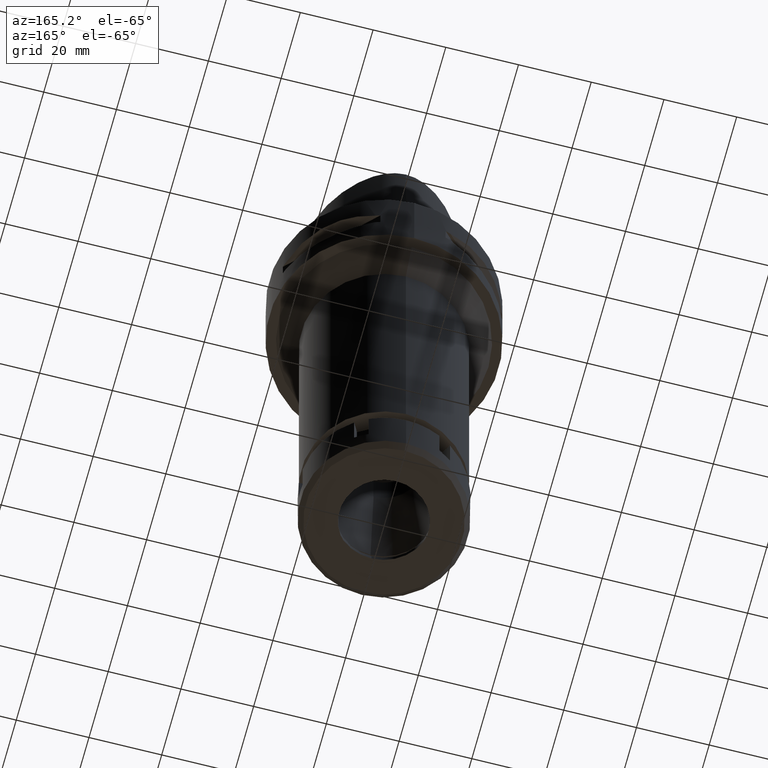
[diagram: clean part render]
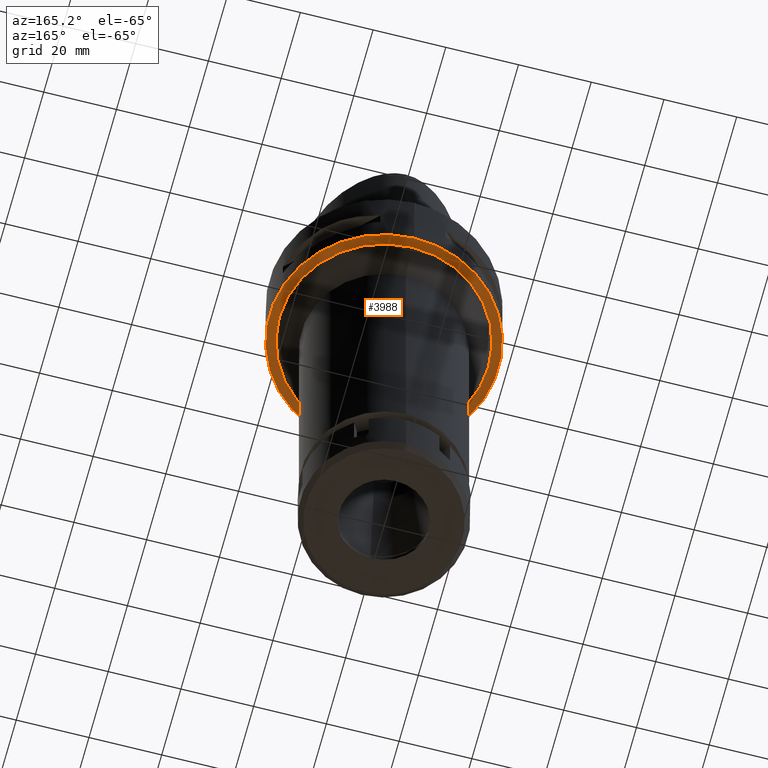
[diagram: same view with one face highlighted and labeled with its STEP entity id]
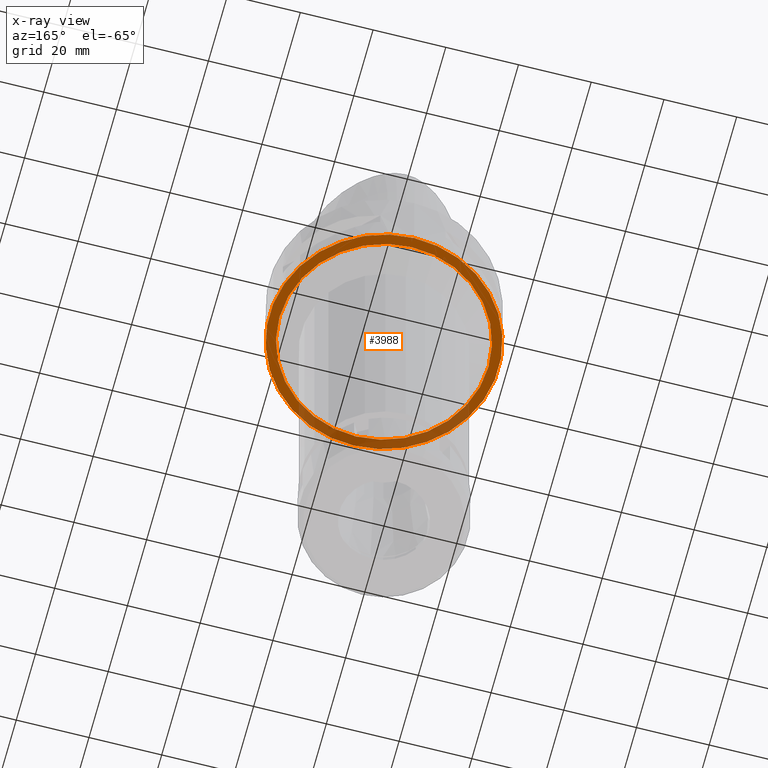
[diagram: x-ray of the same camera — body ghosted, the highlighted face saturated]
A machine part, auxiliary view. The second image highlights one B-rep face of the part: STEP entity #3988.
The next image is the same camera in x-ray: the body ghosted, the highlighted face saturated — about 27% of this face is hidden behind the body in this view.
In plain terms, the highlighted planar face has unit normal (0, 0, -1).
Its self-contained STEP definition (entity closure, byte-faithful):
#77 = CARTESIAN_POINT ( 'NONE',  ( 0.0000000000000000000, 0.0000000000000000000, -22.00000000000000000 ) ) ;
#183 = CARTESIAN_POINT ( 'NONE',  ( 0.0000000000000000000, 31.50000000000000000, -22.00000000000000000 ) ) ;
#348 = DIRECTION ( 'NONE',  ( 0.0000000000000000000, 0.0000000000000000000, 1.000000000000000000 ) ) ;
#507 = DIRECTION ( 'NONE',  ( 0.0000000000000000000, 1.000000000000000000, 0.0000000000000000000 ) ) ;
#573 = ORIENTED_EDGE ( 'NONE', *, *, #4672, .F. ) ;
#755 = CARTESIAN_POINT ( 'NONE',  ( 0.0000000000000000000, 28.75000000000000000, -22.00000000000000000 ) ) ;
#912 = PLANE ( 'NONE',  #1749 ) ;
#1266 = FACE_OUTER_BOUND ( 'NONE', #4623, .T. ) ;
#1398 = CIRCLE ( 'NONE', #4551, 28.75000000000000000 ) ;
#1427 = DIRECTION ( 'NONE',  ( 0.0000000000000000000, -1.000000000000000000, 0.0000000000000000000 ) ) ;
#1526 = EDGE_LOOP ( 'NONE', ( #2308, #2432 ) ) ;
#1601 = CARTESIAN_POINT ( 'NONE',  ( 0.0000000000000000000, -28.75000000000000000, -22.00000000000000000 ) ) ;
#1671 = CARTESIAN_POINT ( 'NONE',  ( 0.0000000000000000000, 1.302411870892999789E-14, -22.00000000000000000 ) ) ;
#1707 = DIRECTION ( 'NONE',  ( 0.0000000000000000000, 0.0000000000000000000, -1.000000000000000000 ) ) ;
#1733 = FACE_BOUND ( 'NONE', #1526, .T. ) ;
#1749 = AXIS2_PLACEMENT_3D ( 'NONE', #2607, #1707, #4340 ) ;
#1870 = CARTESIAN_POINT ( 'NONE',  ( 0.0000000000000000000, 0.0000000000000000000, -22.00000000000000000 ) ) ;
#2018 = VERTEX_POINT ( 'NONE', #1601 ) ;
#2308 = ORIENTED_EDGE ( 'NONE', *, *, #4221, .F. ) ;
#2391 = ORIENTED_EDGE ( 'NONE', *, *, #4864, .F. ) ;
#2432 = ORIENTED_EDGE ( 'NONE', *, *, #4763, .F. ) ;
#2435 = CARTESIAN_POINT ( 'NONE',  ( 0.0000000000000000000, -31.50000000000000000, -22.00000000000000000 ) ) ;
#2466 = AXIS2_PLACEMENT_3D ( 'NONE', #3564, #5282, #1427 ) ;
#2492 = VERTEX_POINT ( 'NONE', #183 ) ;
#2607 = CARTESIAN_POINT ( 'NONE',  ( 0.0000000000000000000, 0.0000000000000000000, -22.00000000000000000 ) ) ;
#2631 = DIRECTION ( 'NONE',  ( 0.0000000000000000000, 0.0000000000000000000, -1.000000000000000000 ) ) ;
#3389 = DIRECTION ( 'NONE',  ( 0.0000000000000000000, 1.000000000000000000, 0.0000000000000000000 ) ) ;
#3473 = CIRCLE ( 'NONE', #2466, 31.50000000000000000 ) ;
#3564 = CARTESIAN_POINT ( 'NONE',  ( 0.0000000000000000000, 1.302411870892999789E-14, -22.00000000000000000 ) ) ;
#3790 = VERTEX_POINT ( 'NONE', #755 ) ;
#3938 = DIRECTION ( 'NONE',  ( 0.0000000000000000000, 0.0000000000000000000, -1.000000000000000000 ) ) ;
#3988 = ADVANCED_FACE ( 'NONE', ( #1266, #1733 ), #912, .T. ) ;
#4221 = EDGE_CURVE ( 'NONE', #3790, #2018, #1398, .T. ) ;
#4340 = DIRECTION ( 'NONE',  ( 0.0000000000000000000, -1.000000000000000000, 0.0000000000000000000 ) ) ;
#4551 = AXIS2_PLACEMENT_3D ( 'NONE', #1870, #2631, #507 ) ;
#4556 = CIRCLE ( 'NONE', #4986, 31.50000000000000000 ) ;
#4623 = EDGE_LOOP ( 'NONE', ( #573, #2391 ) ) ;
#4672 = EDGE_CURVE ( 'NONE', #2492, #5146, #4556, .T. ) ;
#4763 = EDGE_CURVE ( 'NONE', #2018, #3790, #5085, .T. ) ;
#4864 = EDGE_CURVE ( 'NONE', #5146, #2492, #3473, .T. ) ;
#4986 = AXIS2_PLACEMENT_3D ( 'NONE', #1671, #348, #3389 ) ;
#5085 = CIRCLE ( 'NONE', #5184, 28.75000000000000000 ) ;
#5146 = VERTEX_POINT ( 'NONE', #2435 ) ;
#5184 = AXIS2_PLACEMENT_3D ( 'NONE', #77, #3938, #5224 ) ;
#5224 = DIRECTION ( 'NONE',  ( 0.0000000000000000000, -1.000000000000000000, 0.0000000000000000000 ) ) ;
#5282 = DIRECTION ( 'NONE',  ( 0.0000000000000000000, 0.0000000000000000000, 1.000000000000000000 ) ) ;